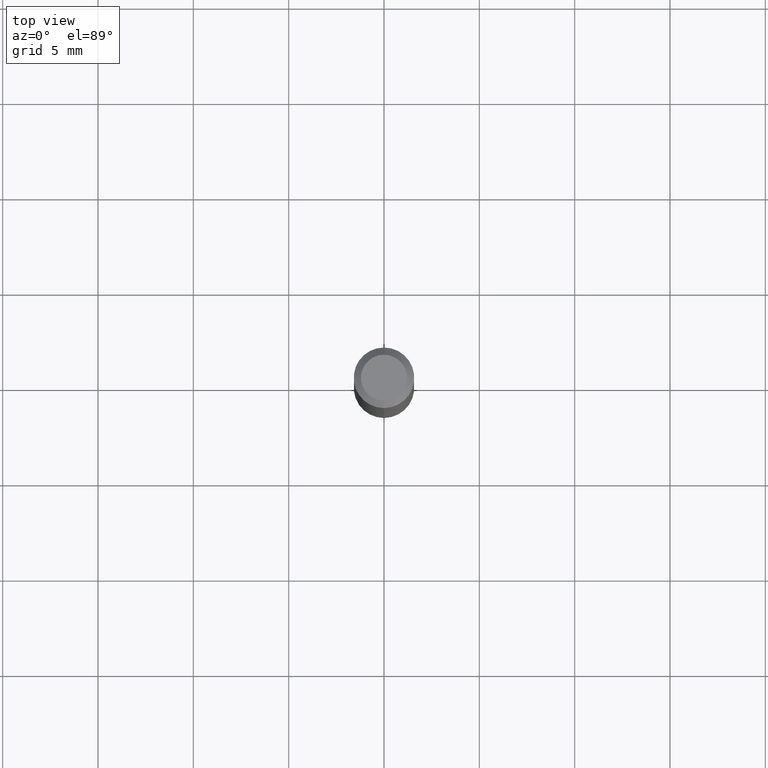
[diagram: clean part render]
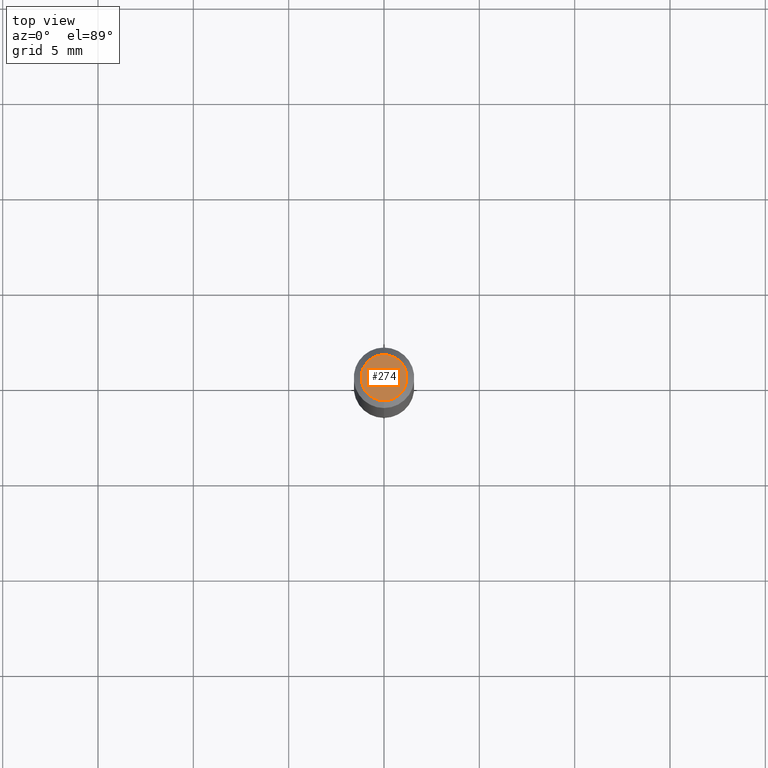
[diagram: same view with one face highlighted and labeled with its STEP entity id]
A machine part, top view. The second image highlights one B-rep face of the part: STEP entity #274.
In plain terms, the highlighted planar face has unit normal (0, -0, -1).
Its self-contained STEP definition (entity closure, byte-faithful):
#20 = CIRCLE ( 'NONE', #262, 0.04750000000000004219 ) ;
#72 = DIRECTION ( 'NONE',  ( 6.982962677686265922E-15, 1.000000000000000000, -3.487252007655688059E-15 ) ) ;
#88 = CARTESIAN_POINT ( 'NONE',  ( 3.192810954353404437E-45, -4.547474172626968714E-31, -1.304027974647010610E-16 ) ) ;
#98 = CIRCLE ( 'NONE', #420, 0.04750000000000004219 ) ;
#115 = DIRECTION ( 'NONE',  ( -2.448422132368495575E-29, 3.487252007655688059E-15, 1.000000000000000000 ) ) ;
#116 = VERTEX_POINT ( 'NONE', #410 ) ;
#123 = ORIENTED_EDGE ( 'NONE', *, *, #448, .T. ) ;
#143 = FACE_OUTER_BOUND ( 'NONE', #273, .T. ) ;
#145 = CARTESIAN_POINT ( 'NONE',  ( 3.192810954353404437E-45, -4.547474172626968714E-31, -1.304027974647010610E-16 ) ) ;
#156 = CARTESIAN_POINT ( 'NONE',  ( -3.773273898774342241E-16, -0.04750000000000004219, 3.524167289894427289E-17 ) ) ;
#186 = CARTESIAN_POINT ( 'NONE',  ( 3.316907271900979054E-16, 0.04750000000000004219, -2.308458690959958706E-16 ) ) ;
#189 = EDGE_CURVE ( 'NONE', #116, #301, #98, .T. ) ;
#199 = DIRECTION ( 'NONE',  ( -6.982962677686265133E-15, -1.000000000000000000, 3.487252007655688059E-15 ) ) ;
#244 = DIRECTION ( 'NONE',  ( -2.448422132368495575E-29, 3.487252007655688059E-15, 1.000000000000000000 ) ) ;
#262 = AXIS2_PLACEMENT_3D ( 'NONE', #88, #244, #433 ) ;
#273 = EDGE_LOOP ( 'NONE', ( #396, #123 ) ) ;
#274 = ADVANCED_FACE ( 'NONE', ( #143 ), #419, .F. ) ;
#301 = VERTEX_POINT ( 'NONE', #156 ) ;
#396 = ORIENTED_EDGE ( 'NONE', *, *, #189, .T. ) ;
#407 = AXIS2_PLACEMENT_3D ( 'NONE', #186, #426, #72 ) ;
#410 = CARTESIAN_POINT ( 'NONE',  ( 3.840629472727450339E-16, 0.04750000000000004219, -2.960472678283463395E-16 ) ) ;
#419 = PLANE ( 'NONE',  #407 ) ;
#420 = AXIS2_PLACEMENT_3D ( 'NONE', #145, #115, #199 ) ;
#426 = DIRECTION ( 'NONE',  ( 2.448422132368495295E-29, -3.487252007655688059E-15, -1.000000000000000000 ) ) ;
#433 = DIRECTION ( 'NONE',  ( -6.982962677686265133E-15, -1.000000000000000000, 3.487252007655688059E-15 ) ) ;
#448 = EDGE_CURVE ( 'NONE', #301, #116, #20, .T. ) ;